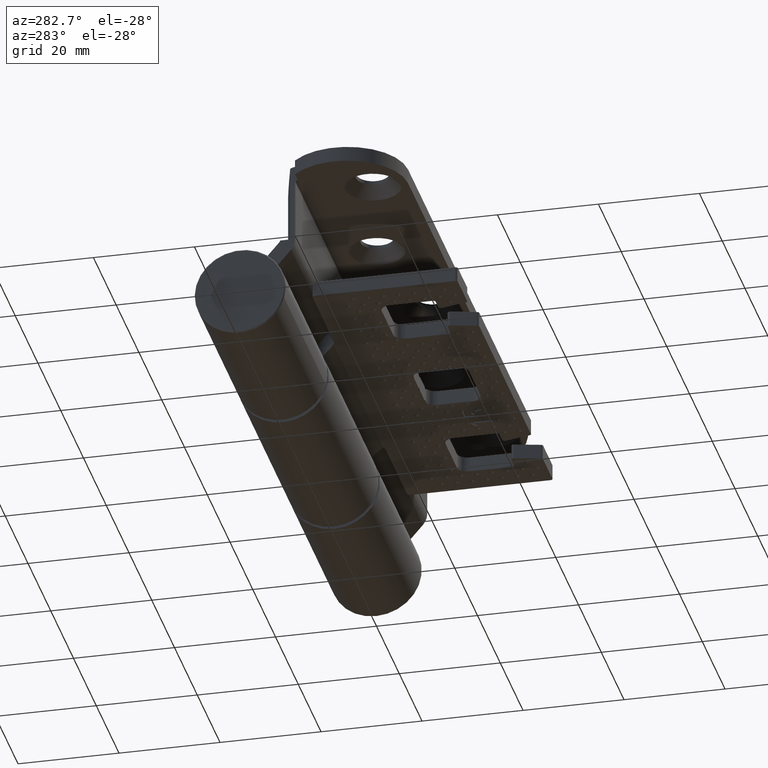
[diagram: clean part render]
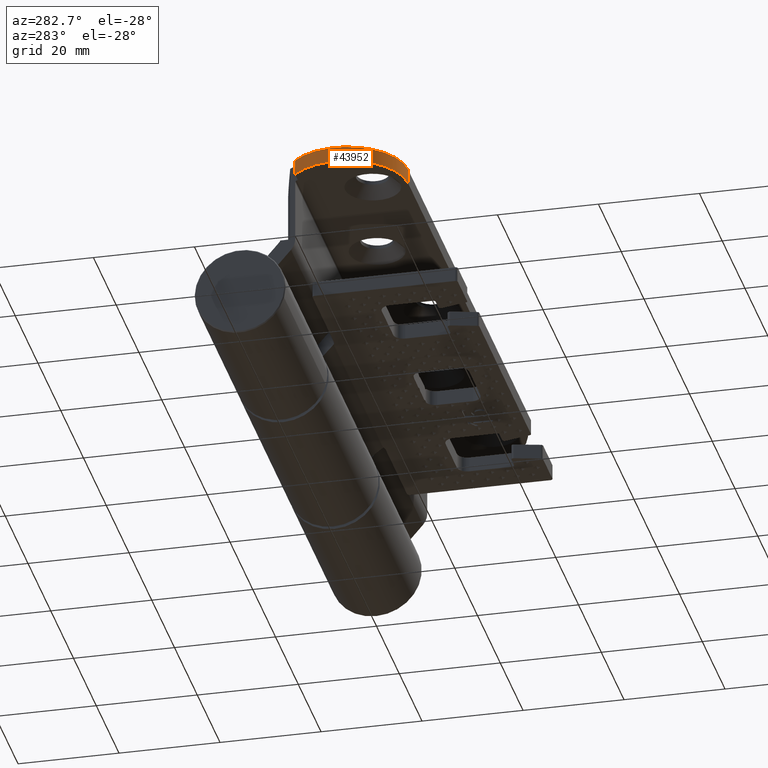
[diagram: same view with one face highlighted and labeled with its STEP entity id]
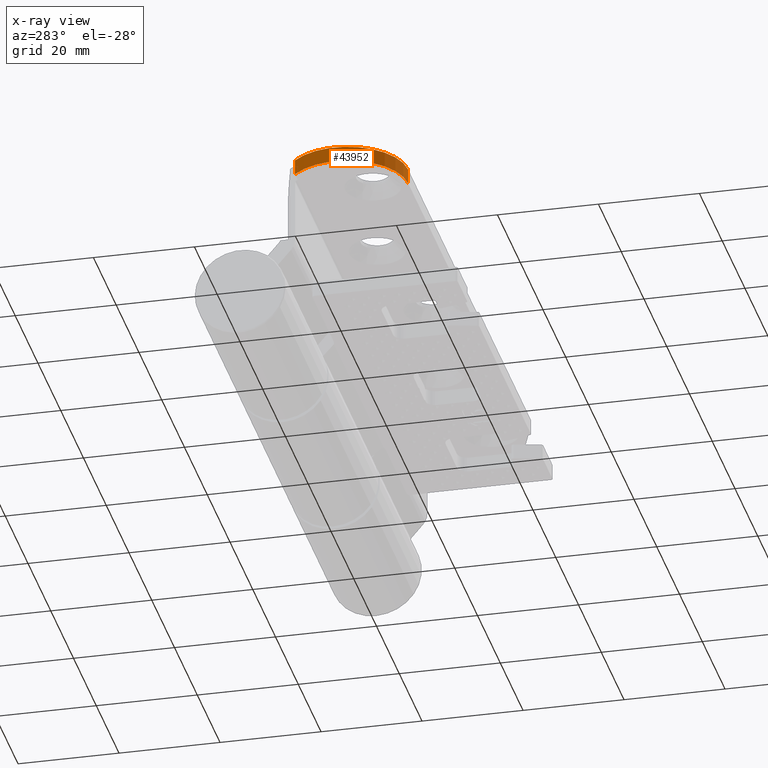
[diagram: x-ray of the same camera — body ghosted, the highlighted face saturated]
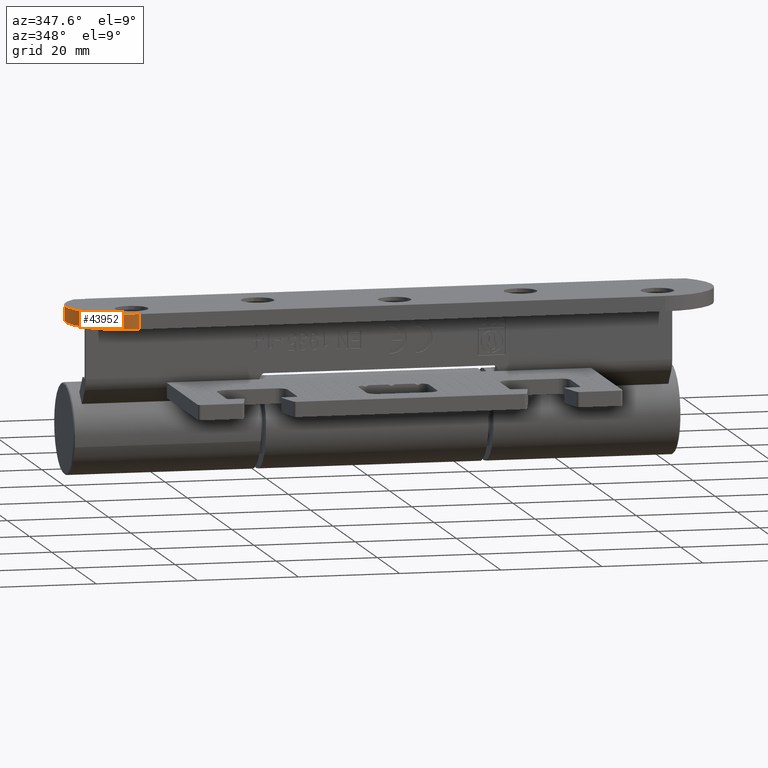
[diagram: same view with one face highlighted and labeled with its STEP entity id]
A machine part, auxiliary view. The second image highlights one B-rep face of the part: STEP entity #43952.
The next image is the same camera in x-ray: the body ghosted, the highlighted face saturated — about 0% of this face is hidden behind the body in this view.
A second angle (auxiliary view) of the same face is appended — the face is thin or edge-on in the first view.
In plain terms, the highlighted cylindrical surface (partial cylindrical patch) has radius 12 mm, axis along (-0, -0, -1).
Its self-contained STEP definition (entity closure, byte-faithful):
#316 = EDGE_CURVE ( 'NONE', #45038, #15019, #30196, .T. ) ;
#1611 = EDGE_CURVE ( 'NONE', #16869, #45038, #19269, .T. ) ;
#4668 = DIRECTION ( 'NONE',  ( -0.000000000000000000, 0.000000000000000000, 1.000000000000000000 ) ) ;
#8020 = DIRECTION ( 'NONE',  ( -0.000000000000000000, -0.000000000000000000, 1.000000000000000000 ) ) ;
#8810 = DIRECTION ( 'NONE',  ( 1.000000000000000000, 0.000000000000000000, 0.000000000000000000 ) ) ;
#9562 = VECTOR ( 'NONE', #8020, 1000.000000000000000 ) ;
#10756 = DIRECTION ( 'NONE',  ( -0.000000000000000000, 0.000000000000000000, 1.000000000000000000 ) ) ;
#11490 = ORIENTED_EDGE ( 'NONE', *, *, #48146, .T. ) ;
#11689 = LINE ( 'NONE', #41428, #9562 ) ;
#12479 = CARTESIAN_POINT ( 'NONE',  ( -12.00000000000000178, 52.00000000000000000, 0.000000000000000000 ) ) ;
#13137 = EDGE_LOOP ( 'NONE', ( #33603, #36801, #41649, #11490 ) ) ;
#14012 = DIRECTION ( 'NONE',  ( -0.000000000000000000, -0.000000000000000000, 1.000000000000000000 ) ) ;
#15019 = VERTEX_POINT ( 'NONE', #34628 ) ;
#15171 = CARTESIAN_POINT ( 'NONE',  ( 3.673940397442059868E-16, 52.00000000000000000, 0.000000000000000000 ) ) ;
#15627 = CARTESIAN_POINT ( 'NONE',  ( 3.673940397442059868E-16, 52.00000000000000000, 0.000000000000000000 ) ) ;
#16869 = VERTEX_POINT ( 'NONE', #15171 ) ;
#17059 = AXIS2_PLACEMENT_3D ( 'NONE', #12479, #4668, #8810 ) ;
#19269 = LINE ( 'NONE', #15627, #19467 ) ;
#19467 = VECTOR ( 'NONE', #14012, 1000.000000000000000 ) ;
#19868 = DIRECTION ( 'NONE',  ( 1.000000000000000000, 0.000000000000000000, 0.000000000000000000 ) ) ;
#20359 = CARTESIAN_POINT ( 'NONE',  ( -12.00000000000000178, 52.00000000000000000, 0.000000000000000000 ) ) ;
#21759 = CARTESIAN_POINT ( 'NONE',  ( 3.673940397442059868E-16, 52.00000000000000000, 3.000000000000000000 ) ) ;
#22527 = AXIS2_PLACEMENT_3D ( 'NONE', #20359, #38859, #19868 ) ;
#23240 = CARTESIAN_POINT ( 'NONE',  ( -20.50000000000000000, 60.47053717304871157, 0.000000000000000000 ) ) ;
#23862 = VERTEX_POINT ( 'NONE', #23240 ) ;
#27663 = FACE_OUTER_BOUND ( 'NONE', #13137, .T. ) ;
#30196 = CIRCLE ( 'NONE', #43398, 12.00000000000000355 ) ;
#33603 = ORIENTED_EDGE ( 'NONE', *, *, #316, .F. ) ;
#34628 = CARTESIAN_POINT ( 'NONE',  ( -20.50000000000000000, 60.47053717304871157, 3.000000000000000000 ) ) ;
#35458 = CYLINDRICAL_SURFACE ( 'NONE', #22527, 12.00000000000000355 ) ;
#36801 = ORIENTED_EDGE ( 'NONE', *, *, #1611, .F. ) ;
#37086 = CARTESIAN_POINT ( 'NONE',  ( -12.00000000000000178, 52.00000000000000000, 3.000000000000000000 ) ) ;
#38859 = DIRECTION ( 'NONE',  ( -0.000000000000000000, -0.000000000000000000, 1.000000000000000000 ) ) ;
#41211 = CIRCLE ( 'NONE', #17059, 12.00000000000000355 ) ;
#41428 = CARTESIAN_POINT ( 'NONE',  ( -20.50000000000000000, 60.47053717304871157, 0.000000000000000000 ) ) ;
#41649 = ORIENTED_EDGE ( 'NONE', *, *, #41777, .T. ) ;
#41777 = EDGE_CURVE ( 'NONE', #16869, #23862, #41211, .T. ) ;
#43398 = AXIS2_PLACEMENT_3D ( 'NONE', #37086, #10756, #48031 ) ;
#43952 = ADVANCED_FACE ( 'NONE', ( #27663 ), #35458, .T. ) ;
#45038 = VERTEX_POINT ( 'NONE', #21759 ) ;
#48031 = DIRECTION ( 'NONE',  ( 1.000000000000000000, 0.000000000000000000, 0.000000000000000000 ) ) ;
#48146 = EDGE_CURVE ( 'NONE', #23862, #15019, #11689, .T. ) ;